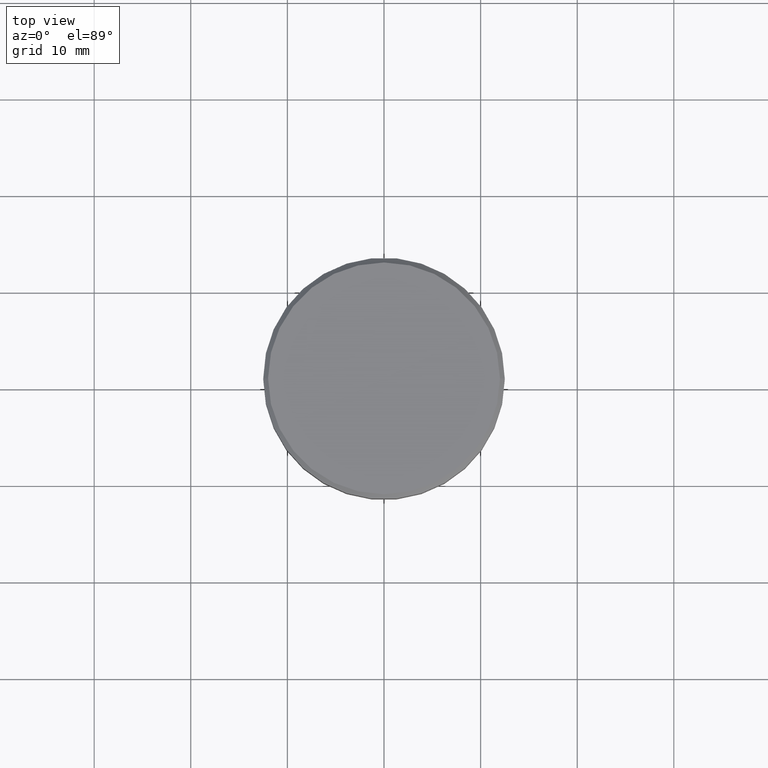
[diagram: clean part render]
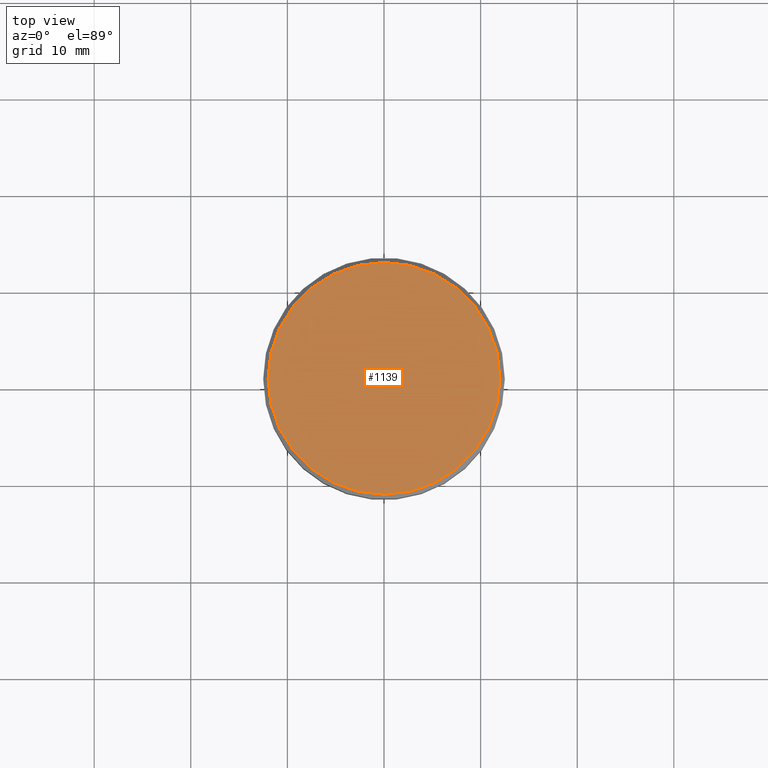
[diagram: same view with one face highlighted and labeled with its STEP entity id]
A machine part, top view. The second image highlights one B-rep face of the part: STEP entity #1139.
In plain terms, the highlighted planar face has unit normal (0, -0, 1).
Its self-contained STEP definition (entity closure, byte-faithful):
#92 = CIRCLE ( 'NONE', #506, 11.99999999999998934 ) ;
#97 = DIRECTION ( 'NONE',  ( -0.000000000000000000, -0.000000000000000000, 1.000000000000000000 ) ) ;
#135 = PLANE ( 'NONE',  #443 ) ;
#155 = EDGE_CURVE ( 'NONE', #227, #845, #92, .T. ) ;
#171 = DIRECTION ( 'NONE',  ( 1.000000000000000000, 0.000000000000000000, 0.000000000000000000 ) ) ;
#184 = CARTESIAN_POINT ( 'NONE',  ( 0.000000000000000000, 0.000000000000000000, 0.000000000000000000 ) ) ;
#227 = VERTEX_POINT ( 'NONE', #423 ) ;
#269 = EDGE_LOOP ( 'NONE', ( #1041, #549 ) ) ;
#277 = CARTESIAN_POINT ( 'NONE',  ( 11.99999999999998934, 1.500192328955507143E-15, 0.000000000000000000 ) ) ;
#365 = AXIS2_PLACEMENT_3D ( 'NONE', #184, #97, #171 ) ;
#423 = CARTESIAN_POINT ( 'NONE',  ( -11.99999999999998934, 0.000000000000000000, 0.000000000000000000 ) ) ;
#443 = AXIS2_PLACEMENT_3D ( 'NONE', #1147, #658, #479 ) ;
#479 = DIRECTION ( 'NONE',  ( 1.000000000000000000, 0.000000000000000000, 0.000000000000000000 ) ) ;
#501 = CARTESIAN_POINT ( 'NONE',  ( 0.000000000000000000, 0.000000000000000000, 0.000000000000000000 ) ) ;
#506 = AXIS2_PLACEMENT_3D ( 'NONE', #501, #876, #515 ) ;
#515 = DIRECTION ( 'NONE',  ( 1.000000000000000000, 0.000000000000000000, 0.000000000000000000 ) ) ;
#549 = ORIENTED_EDGE ( 'NONE', *, *, #1032, .T. ) ;
#658 = DIRECTION ( 'NONE',  ( 0.000000000000000000, -0.000000000000000000, 1.000000000000000000 ) ) ;
#683 = CIRCLE ( 'NONE', #365, 11.99999999999998934 ) ;
#845 = VERTEX_POINT ( 'NONE', #277 ) ;
#876 = DIRECTION ( 'NONE',  ( -0.000000000000000000, -0.000000000000000000, 1.000000000000000000 ) ) ;
#1032 = EDGE_CURVE ( 'NONE', #845, #227, #683, .T. ) ;
#1041 = ORIENTED_EDGE ( 'NONE', *, *, #155, .T. ) ;
#1083 = FACE_OUTER_BOUND ( 'NONE', #269, .T. ) ;
#1139 = ADVANCED_FACE ( 'NONE', ( #1083 ), #135, .T. ) ;
#1147 = CARTESIAN_POINT ( 'NONE',  ( 0.000000000000000000, 0.000000000000000000, 0.000000000000000000 ) ) ;